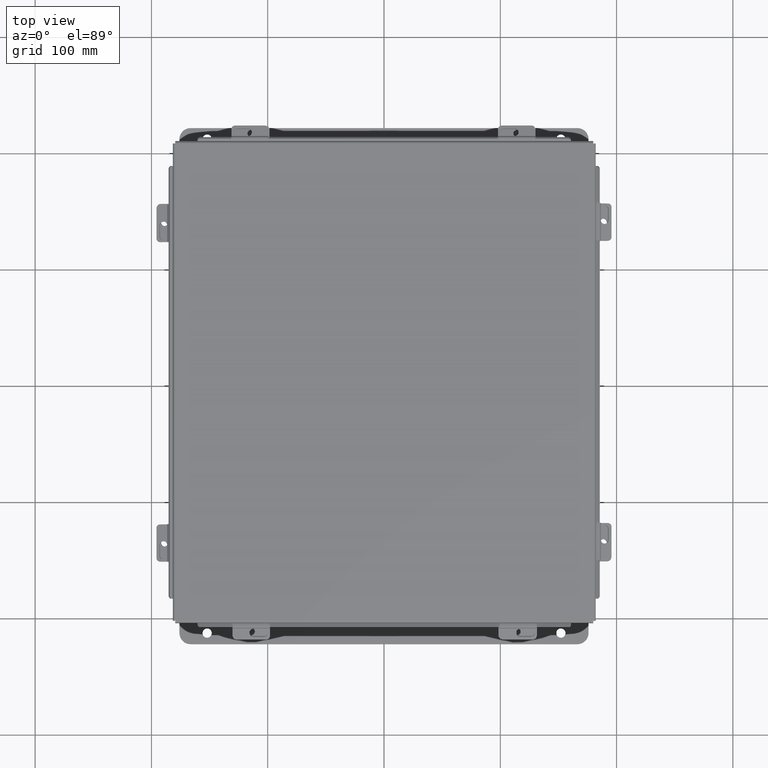
[diagram: clean part render]
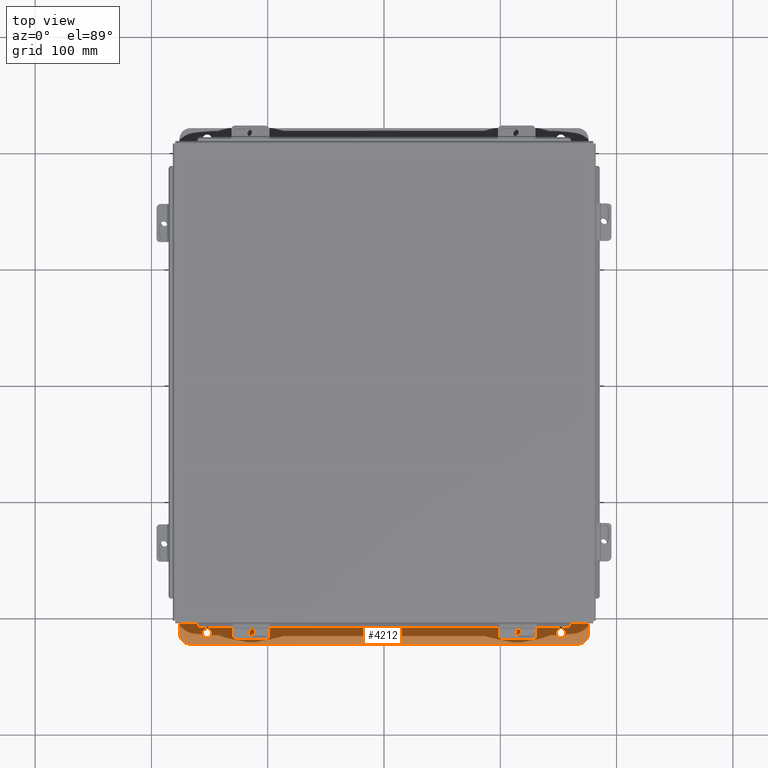
[diagram: same view with one face highlighted and labeled with its STEP entity id]
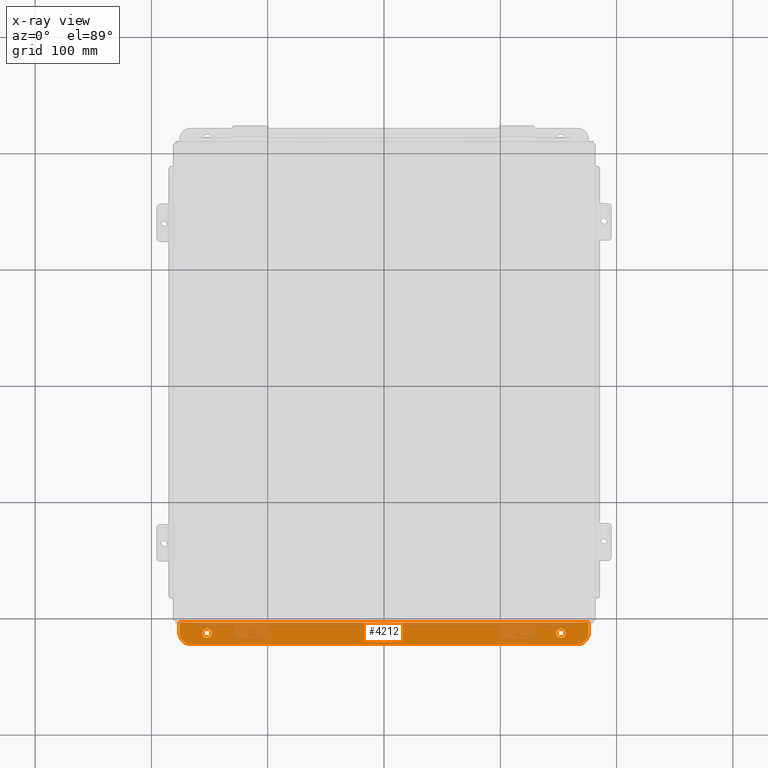
[diagram: x-ray of the same camera — body ghosted, the highlighted face saturated]
A machine part, top view. The second image highlights one B-rep face of the part: STEP entity #4212.
The next image is the same camera in x-ray: the body ghosted, the highlighted face saturated — about 30% of this face is hidden behind the body in this view.
In plain terms, the highlighted planar face has unit normal (0, -0, 1).
Its self-contained STEP definition (entity closure, byte-faithful):
#190 = CARTESIAN_POINT ( 'NONE',  ( -5.987799999999991100, 0.3627999999999997300, -4.112299999999996700 ) ) ;
#285 = CARTESIAN_POINT ( 'NONE',  ( 6.925300000000007100, 0.01300000000000010700, -4.112299999999995000 ) ) ;
#590 = CARTESIAN_POINT ( 'NONE',  ( -2.035385365534024800E-024, -1.420560956705417000E-014, -4.112299999999999400 ) ) ;
#596 = VECTOR ( 'NONE', #2013, 39.37007874015748100 ) ;
#611 = CARTESIAN_POINT ( 'NONE',  ( 6.550300000000007100, 0.7378000000000000100, -4.112300000000002100 ) ) ;
#662 = ORIENTED_EDGE ( 'NONE', *, *, #6669, .T. ) ;
#890 = CARTESIAN_POINT ( 'NONE',  ( -6.550299999999989400, 0.7378000000000086700, -4.112299999999998500 ) ) ;
#963 = ORIENTED_EDGE ( 'NONE', *, *, #2062, .F. ) ;
#1029 = FACE_BOUND ( 'NONE', #5416, .T. ) ;
#1114 = CARTESIAN_POINT ( 'NONE',  ( 6.925300000000007100, 0.0000000000000000000, -4.112299999999995000 ) ) ;
#1129 = CIRCLE ( 'NONE', #3691, 0.1560000000000001700 ) ;
#1165 = FACE_BOUND ( 'NONE', #3271, .T. ) ;
#1437 = VERTEX_POINT ( 'NONE', #6913 ) ;
#1539 = EDGE_CURVE ( 'NONE', #7403, #1437, #2035, .T. ) ;
#1635 = VECTOR ( 'NONE', #4074, 39.37007874015748100 ) ;
#1926 = DIRECTION ( 'NONE',  ( -0.0000000000000000000, -3.702694488566362300E-015, -1.000000000000000000 ) ) ;
#1935 = DIRECTION ( 'NONE',  ( 1.000000000000000000, 4.910036603141682400E-031, -0.0000000000000000000 ) ) ;
#2013 = DIRECTION ( 'NONE',  ( 4.919856193148104900E-031, 1.000000000000000000, -3.702694488566362300E-015 ) ) ;
#2023 = DIRECTION ( 'NONE',  ( 0.0000000000000000000, 3.702694488566362300E-015, 1.000000000000000000 ) ) ;
#2035 = CIRCLE ( 'NONE', #2810, 0.1560000000000001700 ) ;
#2047 = CIRCLE ( 'NONE', #5817, 0.3750000000000000600 ) ;
#2062 = EDGE_CURVE ( 'NONE', #5403, #9854, #4789, .T. ) ;
#2232 = ORIENTED_EDGE ( 'NONE', *, *, #9840, .F. ) ;
#2351 = CIRCLE ( 'NONE', #9483, 0.1560000000000001700 ) ;
#2419 = FACE_OUTER_BOUND ( 'NONE', #7761, .T. ) ;
#2613 = CARTESIAN_POINT ( 'NONE',  ( 6.925300000000007100, 0.3628000000000008400, -4.112300000000001200 ) ) ;
#2810 = AXIS2_PLACEMENT_3D ( 'NONE', #190, #6202, #3487 ) ;
#2877 = CIRCLE ( 'NONE', #3490, 0.3750000000000000600 ) ;
#3233 = CARTESIAN_POINT ( 'NONE',  ( 6.925300000000007100, 0.01300000000000010700, -4.112299999999995000 ) ) ;
#3271 = EDGE_LOOP ( 'NONE', ( #9268, #6549 ) ) ;
#3337 = CARTESIAN_POINT ( 'NONE',  ( -6.925299999999992000, 0.3628000000000085000, -4.112299999999996700 ) ) ;
#3438 = VECTOR ( 'NONE', #7471, 39.37007874015748100 ) ;
#3487 = DIRECTION ( 'NONE',  ( 0.0000000000000000000, -1.000000000000000000, 3.502369222646487400E-015 ) ) ;
#3490 = AXIS2_PLACEMENT_3D ( 'NONE', #4883, #2023, #7153 ) ;
#3516 = CARTESIAN_POINT ( 'NONE',  ( -6.925299999999991100, 0.01300000000000885000, -4.112299999999999400 ) ) ;
#3521 = VECTOR ( 'NONE', #1935, 39.37007874015748100 ) ;
#3537 = EDGE_CURVE ( 'NONE', #1437, #7403, #8460, .T. ) ;
#3663 = EDGE_CURVE ( 'NONE', #8865, #9854, #2877, .T. ) ;
#3691 = AXIS2_PLACEMENT_3D ( 'NONE', #3854, #7579, #6865 ) ;
#3715 = ORIENTED_EDGE ( 'NONE', *, *, #5709, .F. ) ;
#3732 = VERTEX_POINT ( 'NONE', #611 ) ;
#3854 = CARTESIAN_POINT ( 'NONE',  ( 5.987800000000006200, 0.3628000000000085000, -4.112300000000001200 ) ) ;
#4074 = DIRECTION ( 'NONE',  ( -4.919856193148104900E-031, -1.000000000000000000, 3.702694488566362300E-015 ) ) ;
#4087 = DIRECTION ( 'NONE',  ( -0.0000000000000000000, -3.702694488566362300E-015, -1.000000000000000000 ) ) ;
#4212 = ADVANCED_FACE ( 'NONE', ( #1165, #1029, #2419 ), #5823, .T. ) ;
#4229 = DIRECTION ( 'NONE',  ( 0.0000000000000000000, -1.000000000000000000, 3.502369222646487400E-015 ) ) ;
#4249 = ORIENTED_EDGE ( 'NONE', *, *, #5051, .T. ) ;
#4633 = VERTEX_POINT ( 'NONE', #3233 ) ;
#4789 = LINE ( 'NONE', #8934, #596 ) ;
#4883 = CARTESIAN_POINT ( 'NONE',  ( -6.550299999999989400, 0.3628000000000085000, -4.112300000000001200 ) ) ;
#5051 = EDGE_CURVE ( 'NONE', #6142, #9132, #1129, .T. ) ;
#5403 = VERTEX_POINT ( 'NONE', #3516 ) ;
#5405 = EDGE_CURVE ( 'NONE', #7225, #3732, #2047, .T. ) ;
#5416 = EDGE_LOOP ( 'NONE', ( #662, #4249 ) ) ;
#5492 = DIRECTION ( 'NONE',  ( -4.919856193148104900E-031, -1.000000000000000000, 3.702694488566362300E-015 ) ) ;
#5538 = CARTESIAN_POINT ( 'NONE',  ( 6.550300000000007100, 0.3628000000000008400, -4.112299999999996700 ) ) ;
#5624 = CARTESIAN_POINT ( 'NONE',  ( 5.987799999999998200, 0.5188000000000087000, -4.112300000000001200 ) ) ;
#5704 = ORIENTED_EDGE ( 'NONE', *, *, #8057, .F. ) ;
#5709 = EDGE_CURVE ( 'NONE', #4633, #5403, #9577, .T. ) ;
#5817 = AXIS2_PLACEMENT_3D ( 'NONE', #5538, #7922, #7818 ) ;
#5823 = PLANE ( 'NONE',  #6471 ) ;
#6142 = VERTEX_POINT ( 'NONE', #6956 ) ;
#6202 = DIRECTION ( 'NONE',  ( -0.0000000000000000000, -3.702694488566362300E-015, -1.000000000000000000 ) ) ;
#6412 = ORIENTED_EDGE ( 'NONE', *, *, #3663, .T. ) ;
#6471 = AXIS2_PLACEMENT_3D ( 'NONE', #590, #7265, #5492 ) ;
#6476 = CARTESIAN_POINT ( 'NONE',  ( 5.987800000000006200, 0.3628000000000085000, -4.112300000000001200 ) ) ;
#6549 = ORIENTED_EDGE ( 'NONE', *, *, #3537, .T. ) ;
#6598 = CARTESIAN_POINT ( 'NONE',  ( -5.987800000000000000, 0.5187999999999999300, -4.112299999999996700 ) ) ;
#6669 = EDGE_CURVE ( 'NONE', #9132, #6142, #2351, .T. ) ;
#6865 = DIRECTION ( 'NONE',  ( 0.0000000000000000000, -1.000000000000000000, 3.502369222646487400E-015 ) ) ;
#6894 = AXIS2_PLACEMENT_3D ( 'NONE', #9550, #4087, #4229 ) ;
#6913 = CARTESIAN_POINT ( 'NONE',  ( -5.987800000000000000, 0.2067999999999996000, -4.112299999999995800 ) ) ;
#6956 = CARTESIAN_POINT ( 'NONE',  ( 5.987799999999998200, 0.2068000000000083400, -4.112300000000000300 ) ) ;
#7153 = DIRECTION ( 'NONE',  ( 0.0000000000000000000, -1.000000000000000000, 4.370956789862820400E-015 ) ) ;
#7225 = VERTEX_POINT ( 'NONE', #2613 ) ;
#7230 = DIRECTION ( 'NONE',  ( 0.0000000000000000000, -1.000000000000000000, 3.502369222646487400E-015 ) ) ;
#7265 = DIRECTION ( 'NONE',  ( 0.0000000000000000000, 3.702694488566362300E-015, 1.000000000000000000 ) ) ;
#7403 = VERTEX_POINT ( 'NONE', #6598 ) ;
#7471 = DIRECTION ( 'NONE',  ( -1.000000000000000000, -4.910036603141682400E-031, 0.0000000000000000000 ) ) ;
#7579 = DIRECTION ( 'NONE',  ( -0.0000000000000000000, -3.702694488566362300E-015, -1.000000000000000000 ) ) ;
#7761 = EDGE_LOOP ( 'NONE', ( #5704, #6412, #963, #3715, #2232, #8001 ) ) ;
#7818 = DIRECTION ( 'NONE',  ( 0.0000000000000000000, -1.000000000000000000, 4.370956789862820400E-015 ) ) ;
#7922 = DIRECTION ( 'NONE',  ( 0.0000000000000000000, 3.702694488566362300E-015, 1.000000000000000000 ) ) ;
#8001 = ORIENTED_EDGE ( 'NONE', *, *, #5405, .T. ) ;
#8057 = EDGE_CURVE ( 'NONE', #8865, #3732, #9661, .T. ) ;
#8460 = CIRCLE ( 'NONE', #6894, 0.1560000000000001700 ) ;
#8865 = VERTEX_POINT ( 'NONE', #890 ) ;
#8934 = CARTESIAN_POINT ( 'NONE',  ( -6.925299999999992000, 0.7378000000000086700, -4.112300000000002100 ) ) ;
#9132 = VERTEX_POINT ( 'NONE', #5624 ) ;
#9256 = LINE ( 'NONE', #1114, #1635 ) ;
#9268 = ORIENTED_EDGE ( 'NONE', *, *, #1539, .T. ) ;
#9483 = AXIS2_PLACEMENT_3D ( 'NONE', #6476, #1926, #7230 ) ;
#9550 = CARTESIAN_POINT ( 'NONE',  ( -5.987799999999991100, 0.3627999999999997300, -4.112299999999996700 ) ) ;
#9562 = CARTESIAN_POINT ( 'NONE',  ( 6.925300000000007100, 0.7378000000000000100, -4.112299999999998500 ) ) ;
#9577 = LINE ( 'NONE', #285, #3438 ) ;
#9661 = LINE ( 'NONE', #9562, #3521 ) ;
#9840 = EDGE_CURVE ( 'NONE', #7225, #4633, #9256, .T. ) ;
#9854 = VERTEX_POINT ( 'NONE', #3337 ) ;